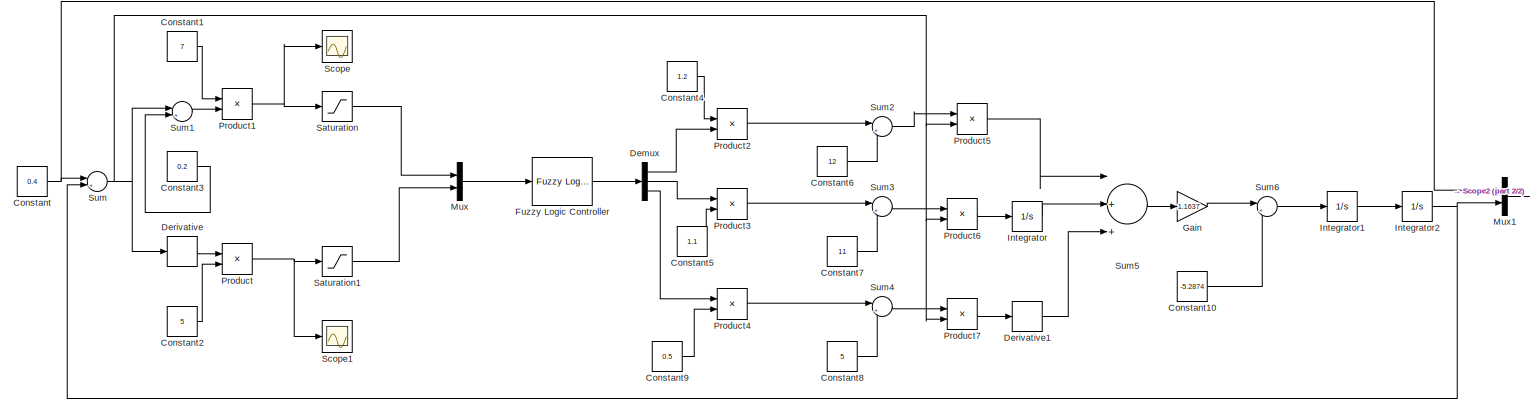
[diagram: root canvas - part 1/2, most of the canvas]
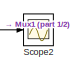
[diagram: root canvas - part 2/2, middle right region]
MODEL slx_58b029f6be35
KIND model
BLOCK [Constant] Constant
  Value = 0.4
BLOCK [Constant] Constant1
  Value = 7
BLOCK [Constant] Constant10
  Value = -5.2874
BLOCK [Constant] Constant2
  Value = 5
BLOCK [Constant] Constant3
  Value = 0.2
BLOCK [Constant] Constant4
  Value = 1.2
BLOCK [Constant] Constant5
  Value = 1.1
BLOCK [Constant] Constant6
  Value = 12
BLOCK [Constant] Constant7
  Value = 11
BLOCK [Constant] Constant8
  Value = 5
BLOCK [Constant] Constant9
  Value = 0.5
BLOCK [Demux] Demux
  DisplayOption = bar
  Outputs = 3
  Ports = [1, 3]
BLOCK [Derivative] Derivative
BLOCK [Derivative] Derivative1
BLOCK [Reference] Fuzzy Logic  Controller  REF=fuzblock/Fuzzy Logic   (lib defined in mdl_858b3b3e7478)
Controller
  Ports = [1, 1]
  SourceBlock = fuzblock/Fuzzy Logic \nController
  SourceType = FIS
  fis = Test
BLOCK [Gain] Gain
  Gain = 1.1637
  OutDataTypeStr = Inherit: Inherit via internal rule
  ParamDataTypeStr = Inherit: Inherit via internal rule
  SaturateOnIntegerOverflow = off
BLOCK [Integrator] Integrator
  Ports = [1, 1]
BLOCK [Integrator] Integrator1
  Ports = [1, 1]
BLOCK [Integrator] Integrator2
  Ports = [1, 1]
BLOCK [Mux] Mux
  DisplayOption = bar
  Inputs = 2
  Ports = [2, 1]
BLOCK [Mux] Mux1
  DisplayOption = bar
  Inputs = 2
  Ports = [2, 1]
BLOCK [Product] Product
  InputSameDT = off
  OutDataTypeStr = Inherit: Inherit via internal rule
  Ports = [2, 1]
  SaturateOnIntegerOverflow = off
BLOCK [Product] Product1
  InputSameDT = off
  OutDataTypeStr = Inherit: Inherit via internal rule
  Ports = [2, 1]
  SaturateOnIntegerOverflow = off
BLOCK [Product] Product2
  InputSameDT = off
  OutDataTypeStr = Inherit: Inherit via internal rule
  Ports = [2, 1]
  SaturateOnIntegerOverflow = off
BLOCK [Product] Product3
  InputSameDT = off
  OutDataTypeStr = Inherit: Inherit via internal rule
  Ports = [2, 1]
  SaturateOnIntegerOverflow = off
BLOCK [Product] Product4
  InputSameDT = off
  OutDataTypeStr = Inherit: Inherit via internal rule
  Ports = [2, 1]
  SaturateOnIntegerOverflow = off
BLOCK [Product] Product5
  InputSameDT = off
  OutDataTypeStr = Inherit: Inherit via internal rule
  Ports = [2, 1]
  SaturateOnIntegerOverflow = off
BLOCK [Product] Product6
  InputSameDT = off
  OutDataTypeStr = Inherit: Inherit via internal rule
  Ports = [2, 1]
  SaturateOnIntegerOverflow = off
BLOCK [Product] Product7
  InputSameDT = off
  OutDataTypeStr = Inherit: Inherit via internal rule
  Ports = [2, 1]
  SaturateOnIntegerOverflow = off
BLOCK [Saturate] Saturation
  InputPortMap = u0
  Ports = [1, 1]
BLOCK [Saturate] Saturation1
  InputPortMap = u0
  Ports = [1, 1]
BLOCK [Scope] Scope
  DataFormat = StructureWithTime
  Floating = off
  NumInputPorts = 1
  Ports = [1]
  SampleTime = 0
  ShowLegends = off
BLOCK [Scope] Scope1
  DataFormat = StructureWithTime
  Floating = off
  NumInputPorts = 1
  Ports = [1]
  SampleTime = 0
  SaveName = ScopeData1
  ShowLegends = off
BLOCK [Scope] Scope2
  DataFormat = StructureWithTime
  Floating = off
  MaxDataPoints = 5000000
  NumInputPorts = 1
  Ports = [1]
  SampleTime = 0
  SaveName = ScopeData2
  SaveToWorkspace = on
  ShowLegends = off
BLOCK [Sum] Sum
  InputSameDT = off
  Inputs = |+-
  OutDataTypeStr = Inherit: Inherit via internal rule
  Ports = [2, 1]
  SaturateOnIntegerOverflow = off
BLOCK [Sum] Sum1
  InputSameDT = off
  Inputs = |+-
  OutDataTypeStr = Inherit: Inherit via internal rule
  Ports = [2, 1]
  SaturateOnIntegerOverflow = off
BLOCK [Sum] Sum2
  IconShape = round
  InputSameDT = off
  Inputs = |++
  OutDataTypeStr = Inherit: Inherit via internal rule
  Ports = [2, 1]
  SaturateOnIntegerOverflow = off
BLOCK [Sum] Sum3
  IconShape = round
  InputSameDT = off
  Inputs = |++
  OutDataTypeStr = Inherit: Inherit via internal rule
  Ports = [2, 1]
  SaturateOnIntegerOverflow = off
BLOCK [Sum] Sum4
  IconShape = round
  InputSameDT = off
  Inputs = |++
  OutDataTypeStr = Inherit: Inherit via internal rule
  Ports = [2, 1]
  SaturateOnIntegerOverflow = off
BLOCK [Sum] Sum5
  InputSameDT = off
  Inputs = |+++
  OutDataTypeStr = Inherit: Inherit via internal rule
  Ports = [3, 1]
  SaturateOnIntegerOverflow = off
BLOCK [Sum] Sum6
  IconShape = round
  InputSameDT = off
  Inputs = |++
  OutDataTypeStr = Inherit: Inherit via internal rule
  Ports = [2, 1]
  SaturateOnIntegerOverflow = off
LINE Constant10:1 -> Sum6:2
LINE Constant1:1 -> Product1:1
LINE Constant2:1 -> Product:2
LINE Constant3:1 -> Sum1:2
LINE Constant4:1 -> Product2:1
LINE Constant5:1 -> Product3:2
LINE Constant6:1 -> Sum2:2
LINE Constant7:1 -> Sum3:2
LINE Constant8:1 -> Sum4:2
LINE Constant9:1 -> Product4:2
NET Constant:1 -> Mux1:1, Sum:1
LINE Demux:1 -> Product2:2
LINE Demux:2 -> Product3:1
LINE Demux:3 -> Product4:1
LINE Derivative1:1 -> Sum5:3
LINE Derivative:1 -> Product:1
LINE Fuzzy Logic  Controller:1 -> Demux:1
LINE Gain:1 -> Sum6:1
LINE Integrator1:1 -> Integrator2:1
NET Integrator2:1 -> Mux1:2, Sum:2
LINE Integrator:1 -> Sum5:2
LINE Mux1:1 -> Scope2:1
LINE Mux:1 -> Fuzzy Logic  Controller:1
NET Product1:1 -> Saturation:1, Scope:1
LINE Product2:1 -> Sum2:1
LINE Product3:1 -> Sum3:1
LINE Product4:1 -> Sum4:1
LINE Product5:1 -> Sum5:1
LINE Product6:1 -> Integrator:1
LINE Product7:1 -> Derivative1:1
NET Product:1 -> Saturation1:1, Scope1:1
LINE Saturation1:1 -> Mux:2
LINE Saturation:1 -> Mux:1
LINE Sum1:1 -> Product1:2
LINE Sum2:1 -> Product5:1
LINE Sum3:1 -> Product6:1
LINE Sum4:1 -> Product7:1
LINE Sum5:1 -> Gain:1
LINE Sum6:1 -> Integrator1:1
NET Sum:1 -> Derivative:1, Product5:2, Product6:2, Product7:2, Sum1:1
note: NET lines group one-source signal fan-out (src -> all destinations, sorted); 1:1 wires keep LINE
